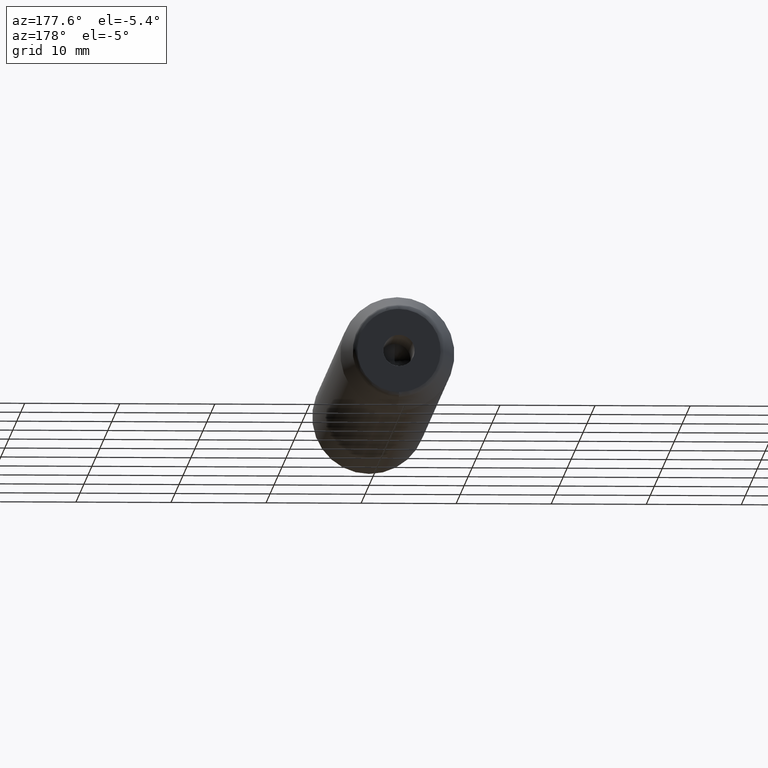
[diagram: clean part render]
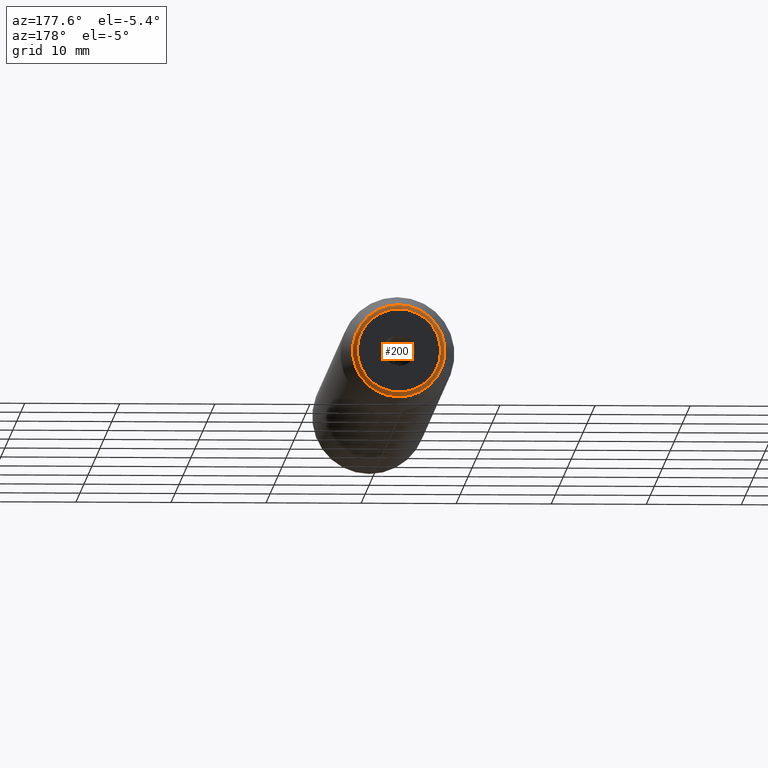
[diagram: same view with one face highlighted and labeled with its STEP entity id]
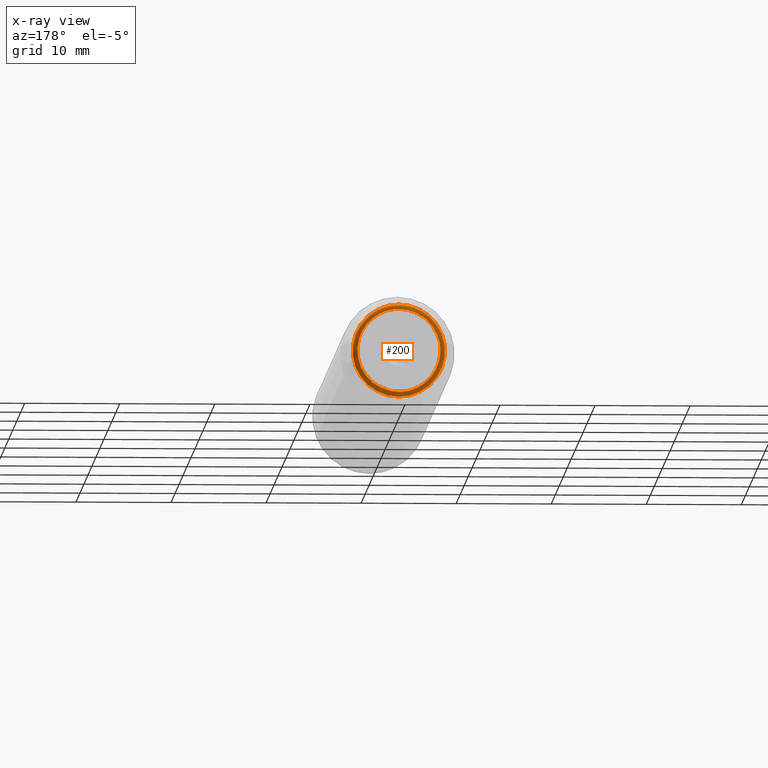
[diagram: x-ray of the same camera — body ghosted, the highlighted face saturated]
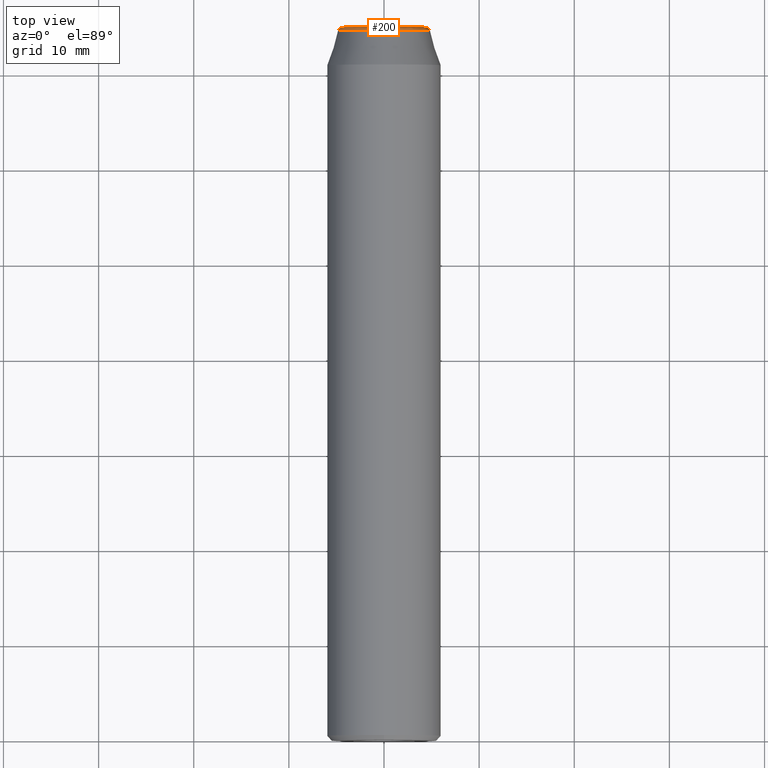
[diagram: same view with one face highlighted and labeled with its STEP entity id]
A machine part, auxiliary view. The second image highlights one B-rep face of the part: STEP entity #200.
The next image is the same camera in x-ray: the body ghosted, the highlighted face saturated — about 0% of this face is hidden behind the body in this view.
A second angle (top view) of the same face is appended — the face is thin or edge-on in the first view.
In plain terms, the highlighted face is a freeform B-spline surface patch.
Its self-contained STEP definition (entity closure, byte-faithful):
#8 = CIRCLE ( 'NONE', #188, 4.859644532331230948 ) ;
#17 = CARTESIAN_POINT ( 'NONE',  ( 0.000000000000000000, 75.00000000000000000, 4.609233332234357938 ) ) ;
#31 = EDGE_CURVE ( 'NONE', #308, #308, #8, .T. ) ;
#32 = CARTESIAN_POINT ( 'NONE',  ( 5.483787781522369726E-16, 75.00000000000001421, -4.382404543304999400 ) ) ;
#33 = CARTESIAN_POINT ( 'NONE',  ( 0.000000000000000000, 74.64913749651297792, 4.859644532339705059 ) ) ;
#50 = CARTESIAN_POINT ( 'NONE',  ( 0.000000000000000000, 74.64913749651032049, -4.859644532331230948 ) ) ;
#64 = CARTESIAN_POINT ( 'NONE',  ( -9.583974353807441560, 74.86564103399577164, -4.791987176903720780 ) ) ;
#65 = DIRECTION ( 'NONE',  ( 0.000000000000000000, 0.000000000000000000, -1.000000000000000000 ) ) ;
#67 = CARTESIAN_POINT ( 'NONE',  ( 9.583974353807441560, 74.86564103399577164, -4.791987176903720780 ) ) ;
#68 = CARTESIAN_POINT ( 'NONE',  ( -8.764809086609998801, 75.00000000000000000, 4.382404543304999400 ) ) ;
#70 = EDGE_CURVE ( 'NONE', #94, #74, #236, .T. ) ;
#74 = VERTEX_POINT ( 'NONE', #273 ) ;
#83 = CARTESIAN_POINT ( 'NONE',  ( -8.764809086609998801, 75.00000000000000000, -4.382404543304999400 ) ) ;
#84 = CARTESIAN_POINT ( 'NONE',  ( -9.583974353807441560, 74.86564103399577164, 4.791987176903720780 ) ) ;
#86 = CARTESIAN_POINT ( 'NONE',  ( -9.218466664468715877, 75.00000000000001421, 4.609233332234357938 ) ) ;
#90 = EDGE_CURVE ( 'NONE', #74, #94, #290, .T. ) ;
#94 = VERTEX_POINT ( 'NONE', #225 ) ;
#107 = CARTESIAN_POINT ( 'NONE',  ( 0.000000000000000000, 74.86564103399577164, -4.791987176903720780 ) ) ;
#140 = EDGE_LOOP ( 'NONE', ( #184, #261 ) ) ;
#144 = CARTESIAN_POINT ( 'NONE',  ( -8.764809086609997024, 75.00000000000000000, 4.382404543304999400 ) ) ;
#146 = CARTESIAN_POINT ( 'NONE',  ( 8.764809086609997024, 75.00000000000000000, -4.382404543304998512 ) ) ;
#147 = CARTESIAN_POINT ( 'NONE',  ( 0.000000000000000000, 74.86564103399577164, 4.791987176903720780 ) ) ;
#153 = CARTESIAN_POINT ( 'NONE',  ( 0.000000000000000000, 74.86564103399577164, 4.791987176903720780 ) ) ;
#154 = CARTESIAN_POINT ( 'NONE',  ( 0.000000000000000000, 75.00000000000001421, -4.382404543304999400 ) ) ;
#165 = CARTESIAN_POINT ( 'NONE',  ( 0.000000000000000000, 75.00000000000001421, 4.382404543304999400 ) ) ;
#170 = CARTESIAN_POINT ( 'NONE',  ( 9.218466664468715877, 75.00000000000001421, -4.609233332234357938 ) ) ;
#171 = CARTESIAN_POINT ( 'NONE',  ( 9.218466664468715877, 75.00000000000001421, 4.609233332234357938 ) ) ;
#172 =( BOUNDED_SURFACE ( )  B_SPLINE_SURFACE ( 3, 3, ( 
 ( #226, #233, #303, #154, #83, #68, #298 ),
 ( #17, #171, #170, #278, #197, #86, #281 ),
 ( #147, #199, #67, #107, #64, #84, #153 ),
 ( #304, #251, #253, #201, #258, #174, #33 ) ),
 .UNSPECIFIED., .F., .T., .F. ) 
 B_SPLINE_SURFACE_WITH_KNOTS ( ( 4, 4 ),
 ( 4, 3, 4 ),
 ( 0.000000000000000000, 1.000000000000000000 ),
 ( 0.000000000000000000, 0.5000000000000000000, 1.000000000000000000 ),
 .UNSPECIFIED. ) 
 GEOMETRIC_REPRESENTATION_ITEM ( )  RATIONAL_B_SPLINE_SURFACE ( (
 ( 1.000000000000000000, 0.3333333333333333148, 0.3333333333333333148, 1.000000000000000000, 0.3333333333333333148, 0.3333333333333333148, 1.000000000000000000),
 ( 0.8704604635415936764, 0.2901534878471978551, 0.2901534878471978551, 0.8704604635415936764, 0.2901534878471978551, 0.2901534878471978551, 0.8704604635415936764),
 ( 0.8704604635415936764, 0.2901534878471978551, 0.2901534878471978551, 0.8704604635415936764, 0.2901534878471978551, 0.2901534878471978551, 0.8704604635415936764),
 ( 1.000000000000000000, 0.3333333333333333148, 0.3333333333333333148, 1.000000000000000000, 0.3333333333333333148, 0.3333333333333333148, 1.000000000000000000) ) ) 
 REPRESENTATION_ITEM ( '' )  SURFACE ( )  );
#174 = CARTESIAN_POINT ( 'NONE',  ( -9.719289064679410117, 74.64913749651297792, 4.859644532339705059 ) ) ;
#175 = CARTESIAN_POINT ( 'NONE',  ( 0.000000000000000000, 74.64913749651032049, 0.000000000000000000 ) ) ;
#184 = ORIENTED_EDGE ( 'NONE', *, *, #90, .T. ) ;
#188 = AXIS2_PLACEMENT_3D ( 'NONE', #175, #282, #65 ) ;
#197 = CARTESIAN_POINT ( 'NONE',  ( -9.218466664468715877, 75.00000000000001421, -4.609233332234357938 ) ) ;
#199 = CARTESIAN_POINT ( 'NONE',  ( 9.583974353807441560, 74.86564103399577164, 4.791987176903720780 ) ) ;
#200 = ADVANCED_FACE ( 'NONE', ( #301, #277 ), #172, .T. ) ;
#201 = CARTESIAN_POINT ( 'NONE',  ( 0.000000000000000000, 74.64913749651297792, -4.859644532339705059 ) ) ;
#213 = ORIENTED_EDGE ( 'NONE', *, *, #31, .F. ) ;
#225 = CARTESIAN_POINT ( 'NONE',  ( 5.483787781522369726E-16, 75.00000000000001421, -4.382404543304999400 ) ) ;
#226 = CARTESIAN_POINT ( 'NONE',  ( 0.000000000000000000, 75.00000000000001421, 4.382404543304999400 ) ) ;
#233 = CARTESIAN_POINT ( 'NONE',  ( 8.764809086609998801, 75.00000000000000000, 4.382404543304999400 ) ) ;
#236 =( BOUNDED_CURVE ( )  B_SPLINE_CURVE ( 3, ( #299, #146, #252, #250 ),
 .UNSPECIFIED., .F., .F. ) 
 B_SPLINE_CURVE_WITH_KNOTS ( ( 4, 4 ),
 ( 0.000000000000000000, 1.000000000000000000 ),
 .UNSPECIFIED. ) 
 CURVE ( )  GEOMETRIC_REPRESENTATION_ITEM ( )  RATIONAL_B_SPLINE_CURVE ( ( 1.000000000000000000, 0.3333333333333333703, 0.3333333333333333703, 1.000000000000000000 ) ) 
 REPRESENTATION_ITEM ( '' )  );
#250 = CARTESIAN_POINT ( 'NONE',  ( 0.000000000000000000, 75.00000000000001421, 4.382404543304999400 ) ) ;
#251 = CARTESIAN_POINT ( 'NONE',  ( 9.719289064679410117, 74.64913749651297792, 4.859644532339705059 ) ) ;
#252 = CARTESIAN_POINT ( 'NONE',  ( 8.764809086609997024, 75.00000000000000000, 4.382404543304999400 ) ) ;
#253 = CARTESIAN_POINT ( 'NONE',  ( 9.719289064679410117, 74.64913749651297792, -4.859644532339705059 ) ) ;
#258 = CARTESIAN_POINT ( 'NONE',  ( -9.719289064679410117, 74.64913749651297792, -4.859644532339705059 ) ) ;
#261 = ORIENTED_EDGE ( 'NONE', *, *, #70, .T. ) ;
#266 = EDGE_LOOP ( 'NONE', ( #213 ) ) ;
#273 = CARTESIAN_POINT ( 'NONE',  ( 0.000000000000000000, 75.00000000000001421, 4.382404543304999400 ) ) ;
#277 = FACE_OUTER_BOUND ( 'NONE', #266, .T. ) ;
#278 = CARTESIAN_POINT ( 'NONE',  ( 0.000000000000000000, 75.00000000000000000, -4.609233332234357938 ) ) ;
#281 = CARTESIAN_POINT ( 'NONE',  ( 0.000000000000000000, 75.00000000000000000, 4.609233332234357938 ) ) ;
#282 = DIRECTION ( 'NONE',  ( 0.000000000000000000, -1.000000000000000000, 0.000000000000000000 ) ) ;
#290 =( BOUNDED_CURVE ( )  B_SPLINE_CURVE ( 3, ( #165, #144, #297, #32 ),
 .UNSPECIFIED., .F., .F. ) 
 B_SPLINE_CURVE_WITH_KNOTS ( ( 4, 4 ),
 ( 0.000000000000000000, 1.000000000000000000 ),
 .UNSPECIFIED. ) 
 CURVE ( )  GEOMETRIC_REPRESENTATION_ITEM ( )  RATIONAL_B_SPLINE_CURVE ( ( 1.000000000000000000, 0.3333333333333333703, 0.3333333333333333703, 1.000000000000000000 ) ) 
 REPRESENTATION_ITEM ( '' )  );
#297 = CARTESIAN_POINT ( 'NONE',  ( -8.764809086609997024, 75.00000000000000000, -4.382404543305000288 ) ) ;
#298 = CARTESIAN_POINT ( 'NONE',  ( 0.000000000000000000, 75.00000000000001421, 4.382404543304999400 ) ) ;
#299 = CARTESIAN_POINT ( 'NONE',  ( 5.483787781522369726E-16, 75.00000000000001421, -4.382404543304999400 ) ) ;
#301 = FACE_OUTER_BOUND ( 'NONE', #140, .T. ) ;
#303 = CARTESIAN_POINT ( 'NONE',  ( 8.764809086609998801, 75.00000000000000000, -4.382404543304999400 ) ) ;
#304 = CARTESIAN_POINT ( 'NONE',  ( 0.000000000000000000, 74.64913749651297792, 4.859644532339705059 ) ) ;
#308 = VERTEX_POINT ( 'NONE', #50 ) ;